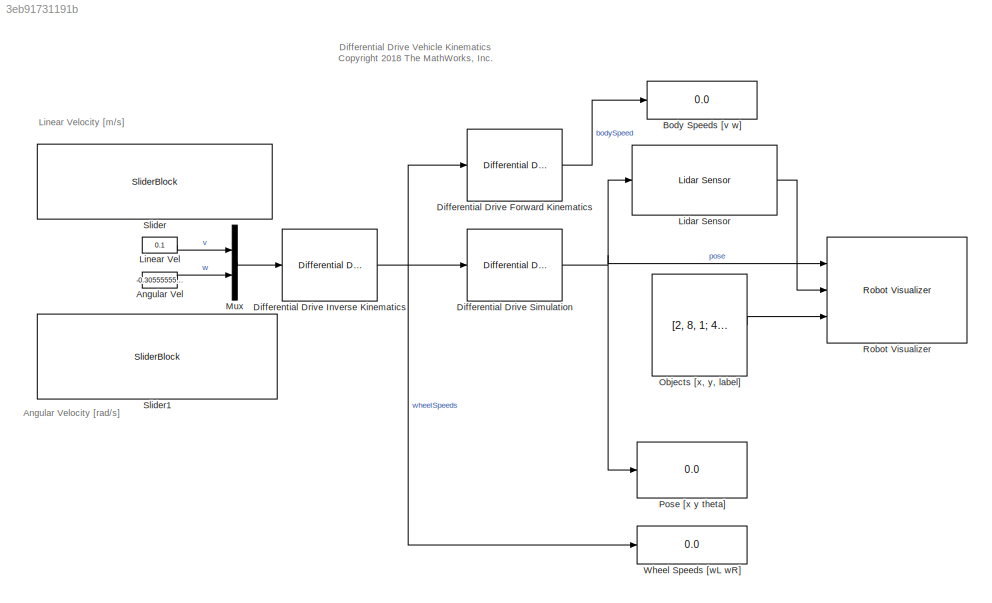
MODEL slx_3eb91731191b
KIND model
CONFIG AbsTol = auto
CONFIG EnableMultiTasking = on
CONFIG FixedStep = 0.01
CONFIG MaxStep = auto
CONFIG MinStep = auto
CONFIG PreLoadFcn = sampleTime = 0.05;\n\n% Vehicle Parameters\nR = 0.1;\nL = 0.5;
CONFIG RelTol = 1e-3
CONFIG SampleTimeConstraint = Unconstrained
CONFIG Solver = VariableStepAuto
CONFIG SolverName = VariableStepAuto
CONFIG StartTime = 0.0
CONFIG StopTime = inf
BLOCK [Constant] Angular Vel
  Value = -0.3055555555555556
BLOCK [Display] Body Speeds [v w]
  Decimation = 1
  Ports = [1]
BLOCK [Reference] Differential Drive Forward Kinematics  REF=mobileRoboticsLib/Kinematic Models/Differential Drive/Differential Drive
Forward Kinematics
  Ports = [1, 1]
  SourceBlock = mobileRoboticsLib/Kinematic Models/Differential Drive/Differential Drive\nForward Kinematics
  SourceProductName = Mobile Robotics Simulation Library
  SourceType = Differential Drive Forward Kinematics
BLOCK [Reference] Differential Drive Inverse Kinematics  REF=mobileRoboticsLib/Kinematic Models/Differential Drive/Differential Drive
Inverse Kinematics
  Ports = [1, 1]
  SourceBlock = mobileRoboticsLib/Kinematic Models/Differential Drive/Differential Drive\nInverse Kinematics
  SourceProductName = Mobile Robotics Simulation Library
  SourceType = Differential Drive Inverse Kinematics
BLOCK [Reference] Differential Drive Simulation  REF=mobileRoboticsLib/Kinematic Models/Differential Drive/Differential Drive Simulation
  Ports = [1, 1]
  SourceBlock = mobileRoboticsLib/Kinematic Models/Differential Drive/Differential Drive Simulation
  SourceProductName = Mobile Robotics Simulation Library
  SourceType = Differential Drive Simulation
BLOCK [Reference] Lidar Sensor  REF=mobileRoboticsLib/Environments/Lidar Sensor
  Ports = [1, 1]
  SourceBlock = mobileRoboticsLib/Environments/Lidar Sensor
  SourceProductName = Mobile Robotics Simulation Toolbox
  SourceType = LidarSensor
BLOCK [Constant] Linear Vel
  Value = 0.1
BLOCK [Mux] Mux
  DisplayOption = bar
  Inputs = 2
  Ports = [2, 1]
BLOCK [Constant] Objects [x, y, label]
  Value = [2, 8, 1; 4, 9, 1; 3, 7, 3;6.5, 5, 2; 9, 11, 2; 8, 4, 3]
BLOCK [Display] Pose [x y theta]
  Decimation = 1
  Ports = [1]
BLOCK [Reference] Robot Visualizer  REF=mobileRoboticsLib/Environments/Robot Visualizer
  Ports = [3]
  Priority = 99
  SourceBlock = mobileRoboticsLib/Environments/Robot Visualizer
  SourceProductName = Mobile Robotics Simulation Library
  SourceType = Visualizer2D
BLOCK [SliderBlock] Slider
  ScaleMax = 1
  ScaleMin = -1
  TickInterval = 0.25
BLOCK [SliderBlock] Slider1
  ScaleMax = 1.5
  ScaleMin = -1.5
BLOCK [Display] Wheel Speeds [wL wR]
  Decimation = 1
  Ports = [1]
ANNOTATION (root): Angular Velocity [rad/s]
ANNOTATION (root): Differential Drive Vehicle Kinematics <copyright redacted>
ANNOTATION (root): Linear Velocity [m/s]
LINE Angular Vel:1 -> Mux:2
LINE Differential Drive Forward Kinematics:1 -> Body Speeds [v w]:1
NET Differential Drive Inverse Kinematics:1 -> Differential Drive Forward Kinematics:1, Differential Drive Simulation:1, Wheel Speeds [wL wR]:1
NET Differential Drive Simulation:1 -> Lidar Sensor:1, Pose [x y theta]:1, Robot Visualizer:1
LINE Lidar Sensor:1 -> Robot Visualizer:2
LINE Linear Vel:1 -> Mux:1
LINE Mux:1 -> Differential Drive Inverse Kinematics:1
LINE Objects [x, y, label]:1 -> Robot Visualizer:3
note: NET lines group one-source signal fan-out (src -> all destinations, sorted); 1:1 wires keep LINE
